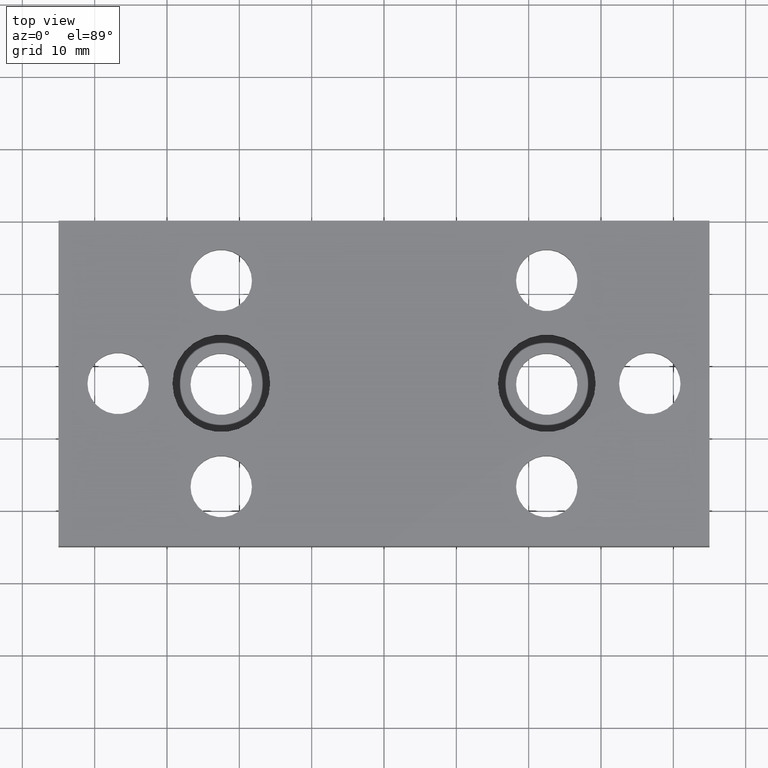
[diagram: clean part render]
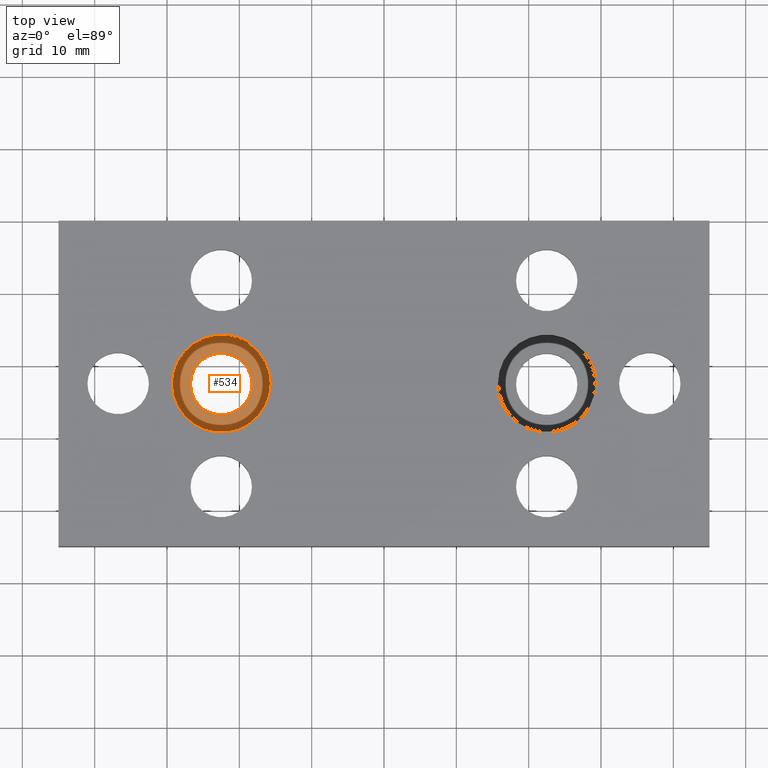
[diagram: same view with one face highlighted and labeled with its STEP entity id]
A machine part, top view. The second image highlights one B-rep face of the part: STEP entity #534.
In plain terms, the highlighted planar face has unit normal (0, 0, -1).
Its self-contained STEP definition (entity closure, byte-faithful):
#475=CARTESIAN_POINT('',(-18.249999999927240,-22.499999999910074,4.499999999999998));
#476=VERTEX_POINT('',#475);
#486=CARTESIAN_POINT('',(-26.749999999893589,-22.499999999910074,4.499999999999998));
#487=VERTEX_POINT('',#486);
#488=CARTESIAN_POINT('',(-22.499999999910415,-22.499999999910074,4.499999999999998));
#489=DIRECTION('',(0.0,6.123234E-017,1.0));
#490=DIRECTION('',(1.0,0.0,0.0));
#491=AXIS2_PLACEMENT_3D('',#488,#489,#490);
#492=CIRCLE('',#491,4.249999999983174);
#493=EDGE_CURVE('',#476,#487,#492,.T.);
#495=CARTESIAN_POINT('',(-22.499999999910415,-22.499999999910074,4.499999999999998));
#496=DIRECTION('',(0.0,6.123234E-017,1.0));
#497=DIRECTION('',(1.0,0.0,0.0));
#498=AXIS2_PLACEMENT_3D('',#495,#496,#497);
#499=CIRCLE('',#498,4.249999999983174);
#500=EDGE_CURVE('',#487,#476,#499,.T.);
#505=CARTESIAN_POINT('',(-35.999999999856755,-35.999999999856414,4.499999999999999));
#506=DIRECTION('',(0.0,0.0,-1.0));
#507=DIRECTION('',(0.0,1.0,0.0));
#508=AXIS2_PLACEMENT_3D('',#505,#506,#507);
#509=PLANE('',#508);
#510=CARTESIAN_POINT('',(-15.749999999937245,-22.499999999910074,4.499999999999998));
#511=VERTEX_POINT('',#510);
#512=CARTESIAN_POINT('',(-29.249999999883585,-22.499999999910074,4.499999999999998));
#513=VERTEX_POINT('',#512);
#514=CARTESIAN_POINT('',(-22.499999999910415,-22.499999999910074,4.499999999999998));
#515=DIRECTION('',(0.0,6.123234E-017,1.0));
#516=DIRECTION('',(1.0,0.0,0.0));
#517=AXIS2_PLACEMENT_3D('',#514,#515,#516);
#518=CIRCLE('',#517,6.749999999973170);
#519=EDGE_CURVE('',#511,#513,#518,.T.);
#520=ORIENTED_EDGE('',*,*,#519,.T.);
#521=CARTESIAN_POINT('',(-22.499999999910415,-22.499999999910074,4.499999999999998));
#522=DIRECTION('',(0.0,6.123234E-017,1.0));
#523=DIRECTION('',(1.0,0.0,0.0));
#524=AXIS2_PLACEMENT_3D('',#521,#522,#523);
#525=CIRCLE('',#524,6.749999999973170);
#526=EDGE_CURVE('',#513,#511,#525,.T.);
#527=ORIENTED_EDGE('',*,*,#526,.T.);
#528=EDGE_LOOP('',(#520,#527));
#529=FACE_OUTER_BOUND('',#528,.T.);
#530=ORIENTED_EDGE('',*,*,#500,.F.);
#531=ORIENTED_EDGE('',*,*,#493,.F.);
#532=EDGE_LOOP('',(#530,#531));
#533=FACE_BOUND('',#532,.T.);
#534=ADVANCED_FACE('',(#529,#533),#509,.F.);